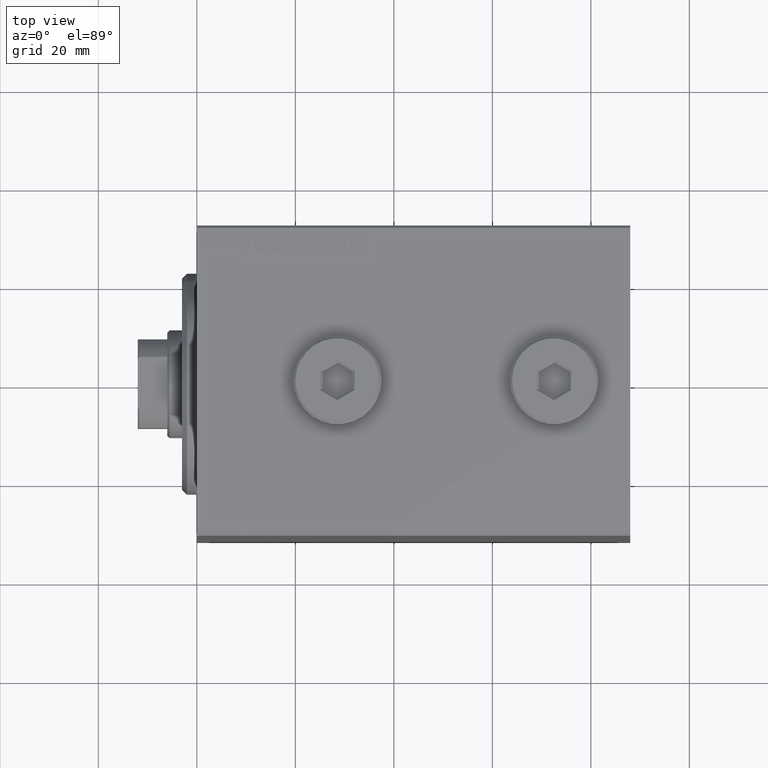
[diagram: clean part render]
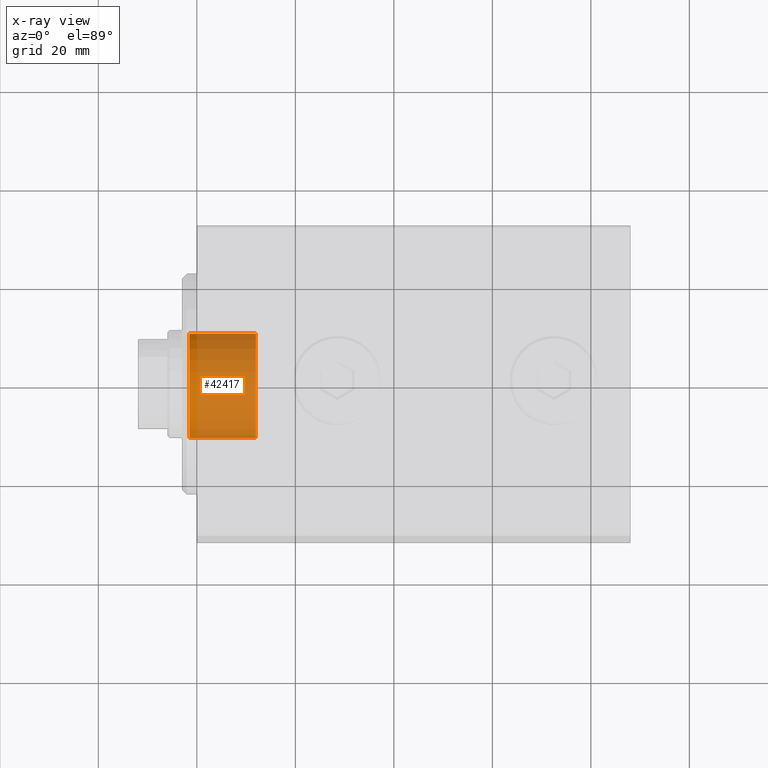
[diagram: x-ray — body ghosted, one internal face saturated and labeled with its STEP entity id]
A machine part, top view, then the same camera in x-ray: the body is ghosted and one INTERNAL B-rep face — a face not visible from any outside direction — is saturated and labeled: STEP entity #42417.
In plain terms, the highlighted cylindrical surface (partial cylindrical patch) has radius 11 mm, axis along (-1, 0, 0).
Its self-contained STEP definition (entity closure, byte-faithful):
#57 = VERTEX_POINT ( 'NONE', #295 ) ;
#295 = CARTESIAN_POINT ( 'NONE',  ( 1.499999999999999556, 0.000000000000000000, -11.00000000000000000 ) ) ;
#395 = AXIS2_PLACEMENT_3D ( 'NONE', #2462, #19164, #2012 ) ;
#769 = DIRECTION ( 'NONE',  ( 1.000000000000000000, -0.000000000000000000, -0.000000000000000000 ) ) ;
#2012 = DIRECTION ( 'NONE',  ( 0.000000000000000000, 0.000000000000000000, -1.000000000000000000 ) ) ;
#2050 = ORIENTED_EDGE ( 'NONE', *, *, #38504, .F. ) ;
#2462 = CARTESIAN_POINT ( 'NONE',  ( 1.499999999999999556, 0.000000000000000000, 0.000000000000000000 ) ) ;
#4355 = FACE_OUTER_BOUND ( 'NONE', #6122, .T. ) ;
#4420 = LINE ( 'NONE', #25231, #44394 ) ;
#6122 = EDGE_LOOP ( 'NONE', ( #2050, #32871, #31371, #16214 ) ) ;
#7778 = CARTESIAN_POINT ( 'NONE',  ( -12.00000000000000000, 0.000000000000000000, 0.000000000000000000 ) ) ;
#12896 = DIRECTION ( 'NONE',  ( 1.000000000000000000, 0.000000000000000000, 0.000000000000000000 ) ) ;
#14073 = EDGE_CURVE ( 'NONE', #16775, #57, #20114, .T. ) ;
#16063 = VERTEX_POINT ( 'NONE', #42779 ) ;
#16214 = ORIENTED_EDGE ( 'NONE', *, *, #33795, .F. ) ;
#16775 = VERTEX_POINT ( 'NONE', #28868 ) ;
#17502 = DIRECTION ( 'NONE',  ( 1.000000000000000000, -0.000000000000000000, -0.000000000000000000 ) ) ;
#18471 = CARTESIAN_POINT ( 'NONE',  ( -12.00000000000000000, 0.000000000000000000, -11.00000000000000000 ) ) ;
#19164 = DIRECTION ( 'NONE',  ( 1.000000000000000000, 0.000000000000000000, 0.000000000000000000 ) ) ;
#20114 = CIRCLE ( 'NONE', #395, 11.00000000000000000 ) ;
#21379 = CARTESIAN_POINT ( 'NONE',  ( -12.00000000000000000, 0.000000000000000000, -11.00000000000000000 ) ) ;
#25032 = LINE ( 'NONE', #21379, #43737 ) ;
#25231 = CARTESIAN_POINT ( 'NONE',  ( -12.00000000000000000, 1.347111479062088405E-15, 11.00000000000000000 ) ) ;
#25853 = DIRECTION ( 'NONE',  ( 1.000000000000000000, -0.000000000000000000, -0.000000000000000000 ) ) ;
#26361 = AXIS2_PLACEMENT_3D ( 'NONE', #7778, #25853, #32937 ) ;
#26634 = DIRECTION ( 'NONE',  ( 0.000000000000000000, 0.000000000000000000, -1.000000000000000000 ) ) ;
#27314 = CARTESIAN_POINT ( 'NONE',  ( -12.00000000000000000, 0.000000000000000000, 0.000000000000000000 ) ) ;
#28868 = CARTESIAN_POINT ( 'NONE',  ( 1.499999999999999556, 1.347111479062088405E-15, 11.00000000000000000 ) ) ;
#31108 = EDGE_CURVE ( 'NONE', #16063, #16775, #4420, .T. ) ;
#31371 = ORIENTED_EDGE ( 'NONE', *, *, #14073, .T. ) ;
#32479 = CYLINDRICAL_SURFACE ( 'NONE', #26361, 11.00000000000000000 ) ;
#32871 = ORIENTED_EDGE ( 'NONE', *, *, #31108, .T. ) ;
#32937 = DIRECTION ( 'NONE',  ( 0.000000000000000000, 0.000000000000000000, -1.000000000000000000 ) ) ;
#33795 = EDGE_CURVE ( 'NONE', #36167, #57, #25032, .T. ) ;
#36167 = VERTEX_POINT ( 'NONE', #18471 ) ;
#36459 = AXIS2_PLACEMENT_3D ( 'NONE', #27314, #12896, #26634 ) ;
#38504 = EDGE_CURVE ( 'NONE', #16063, #36167, #40840, .T. ) ;
#40840 = CIRCLE ( 'NONE', #36459, 11.00000000000000000 ) ;
#42417 = ADVANCED_FACE ( 'NONE', ( #4355 ), #32479, .F. ) ;
#42779 = CARTESIAN_POINT ( 'NONE',  ( -12.00000000000000000, 1.347111479062088405E-15, 11.00000000000000000 ) ) ;
#43737 = VECTOR ( 'NONE', #17502, 1000.000000000000000 ) ;
#44394 = VECTOR ( 'NONE', #769, 1000.000000000000000 ) ;